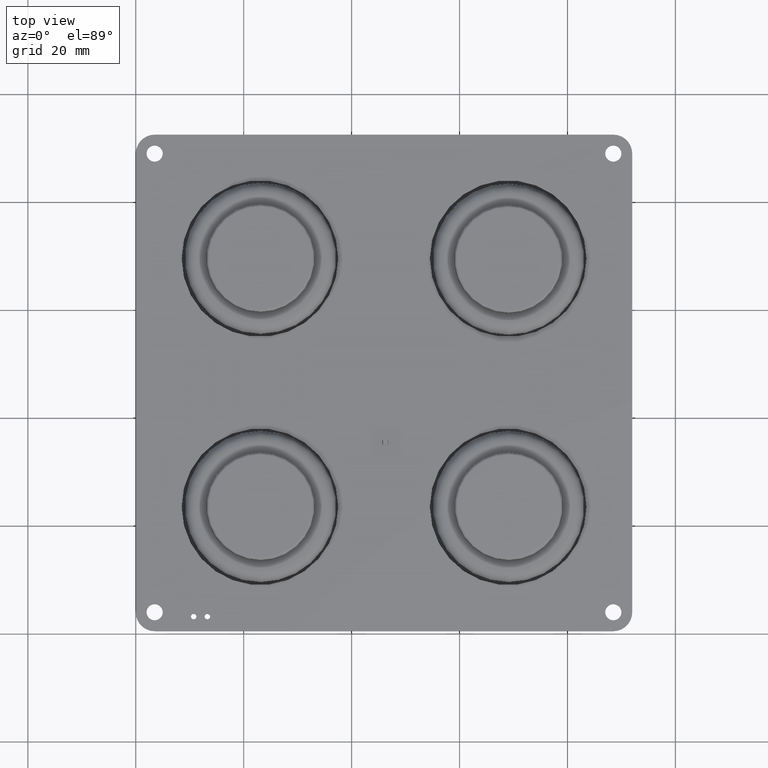
[diagram: clean part render]
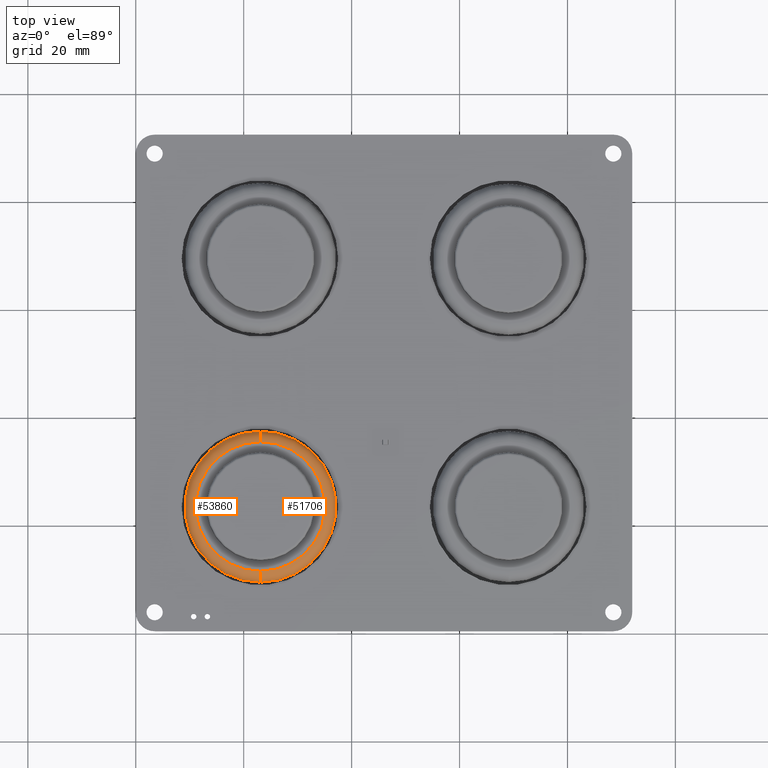
[diagram: same view with one multi-face feature highlighted, each face labeled with its STEP entity id]
A machine part, top view. The highlighted faces form ONE feature: a constant-radius fillet chain: 2 tangent blend faces with common blend radius 2 mm. The faces share edges in the B-rep.
Their STEP definitions:
[1] entity #51706 (Torus):
#51668 = EDGE_CURVE('',#51669,#51671,#51673,.T.);
#51669 = VERTEX_POINT('',#51670);
#51670 = CARTESIAN_POINT('',(0.,29.,-14.));
#51671 = VERTEX_POINT('',#51672);
#51672 = CARTESIAN_POINT('',(1.714505518806E-15,29.,14.));
#51673 = CIRCLE('',#51674,14.);
#51674 = AXIS2_PLACEMENT_3D('',#51675,#51676,#51677);
#51675 = CARTESIAN_POINT('',(0.,29.,0.));
#51676 = DIRECTION('',(0.,-1.,-0.));
#51677 = DIRECTION('',(0.,0.,-1.));
#51706 = ADVANCED_FACE('',(#51707),#51735,.T.);
#51707 = FACE_BOUND('',#51708,.T.);
#51708 = EDGE_LOOP('',(#51709,#51720,#51727,#51728));
#51709 = ORIENTED_EDGE('',*,*,#51710,.T.);
#51710 = EDGE_CURVE('',#51711,#51713,#51715,.T.);
#51711 = VERTEX_POINT('',#51712);
#51712 = CARTESIAN_POINT('',(0.,31.,-12.));
#51713 = VERTEX_POINT('',#51714);
#51714 = CARTESIAN_POINT('',(1.592040838892E-15,31.,12.));
#51715 = CIRCLE('',#51716,12.);
#51716 = AXIS2_PLACEMENT_3D('',#51717,#51718,#51719);
#51717 = CARTESIAN_POINT('',(0.,31.,0.));
#51718 = DIRECTION('',(0.,-1.,-0.));
#51719 = DIRECTION('',(0.,0.,-1.));
#51720 = ORIENTED_EDGE('',*,*,#51721,.T.);
#51721 = EDGE_CURVE('',#51713,#51671,#51722,.T.);
#51722 = CIRCLE('',#51723,2.);
#51723 = AXIS2_PLACEMENT_3D('',#51724,#51725,#51726);
#51724 = CARTESIAN_POINT('',(1.469576158977E-15,29.,12.));
#51725 = DIRECTION('',(1.,0.,-1.224646799147E-16));
#51726 = DIRECTION('',(-1.224646799147E-16,0.,-1.));
#51727 = ORIENTED_EDGE('',*,*,#51668,.F.);
#51728 = ORIENTED_EDGE('',*,*,#51729,.F.);
#51729 = EDGE_CURVE('',#51711,#51669,#51730,.T.);
#51730 = CIRCLE('',#51731,2.);
#51731 = AXIS2_PLACEMENT_3D('',#51732,#51733,#51734);
#51732 = CARTESIAN_POINT('',(0.,29.,-12.));
#51733 = DIRECTION('',(-1.,0.,0.));
#51734 = DIRECTION('',(0.,0.,1.));
#51735 = TOROIDAL_SURFACE('',#51736,12.,2.);
#51736 = AXIS2_PLACEMENT_3D('',#51737,#51738,#51739);
#51737 = CARTESIAN_POINT('',(0.,29.,0.));
#51738 = DIRECTION('',(-0.,-1.,-0.));
#51739 = DIRECTION('',(0.,0.,-1.));
[2] entity #53860 (Torus):
#51669 = VERTEX_POINT('',#51670);
#51670 = CARTESIAN_POINT('',(0.,29.,-14.));
#51671 = VERTEX_POINT('',#51672);
#51672 = CARTESIAN_POINT('',(1.714505518806E-15,29.,14.));
#51711 = VERTEX_POINT('',#51712);
#51712 = CARTESIAN_POINT('',(0.,31.,-12.));
#51713 = VERTEX_POINT('',#51714);
#51714 = CARTESIAN_POINT('',(1.592040838892E-15,31.,12.));
#51721 = EDGE_CURVE('',#51713,#51671,#51722,.T.);
#51722 = CIRCLE('',#51723,2.);
#51723 = AXIS2_PLACEMENT_3D('',#51724,#51725,#51726);
#51724 = CARTESIAN_POINT('',(1.469576158977E-15,29.,12.));
#51725 = DIRECTION('',(1.,0.,-1.224646799147E-16));
#51726 = DIRECTION('',(-1.224646799147E-16,0.,-1.));
#51729 = EDGE_CURVE('',#51711,#51669,#51730,.T.);
#51730 = CIRCLE('',#51731,2.);
#51731 = AXIS2_PLACEMENT_3D('',#51732,#51733,#51734);
#51732 = CARTESIAN_POINT('',(0.,29.,-12.));
#51733 = DIRECTION('',(-1.,0.,0.));
#51734 = DIRECTION('',(0.,0.,1.));
#53849 = EDGE_CURVE('',#51713,#51711,#53850,.T.);
#53850 = CIRCLE('',#53851,12.);
#53851 = AXIS2_PLACEMENT_3D('',#53852,#53853,#53854);
#53852 = CARTESIAN_POINT('',(0.,31.,0.));
#53853 = DIRECTION('',(0.,-1.,-0.));
#53854 = DIRECTION('',(0.,0.,-1.));
#53860 = ADVANCED_FACE('',(#53861),#53873,.T.);
#53861 = FACE_BOUND('',#53862,.T.);
#53862 = EDGE_LOOP('',(#53863,#53864,#53865,#53866));
#53863 = ORIENTED_EDGE('',*,*,#51721,.F.);
#53864 = ORIENTED_EDGE('',*,*,#53849,.T.);
#53865 = ORIENTED_EDGE('',*,*,#51729,.T.);
#53866 = ORIENTED_EDGE('',*,*,#53867,.F.);
#53867 = EDGE_CURVE('',#51671,#51669,#53868,.T.);
#53868 = CIRCLE('',#53869,14.);
#53869 = AXIS2_PLACEMENT_3D('',#53870,#53871,#53872);
#53870 = CARTESIAN_POINT('',(0.,29.,0.));
#53871 = DIRECTION('',(0.,-1.,-0.));
#53872 = DIRECTION('',(0.,0.,-1.));
#53873 = TOROIDAL_SURFACE('',#53874,12.,2.);
#53874 = AXIS2_PLACEMENT_3D('',#53875,#53876,#53877);
#53875 = CARTESIAN_POINT('',(0.,29.,0.));
#53876 = DIRECTION('',(-0.,-1.,-0.));
#53877 = DIRECTION('',(0.,0.,-1.));